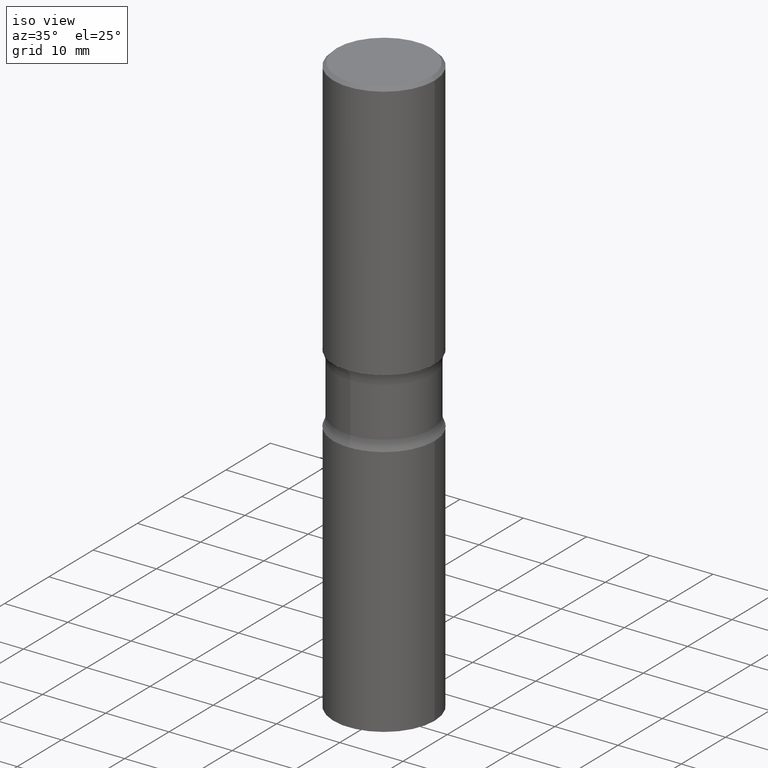
[diagram: clean part render]
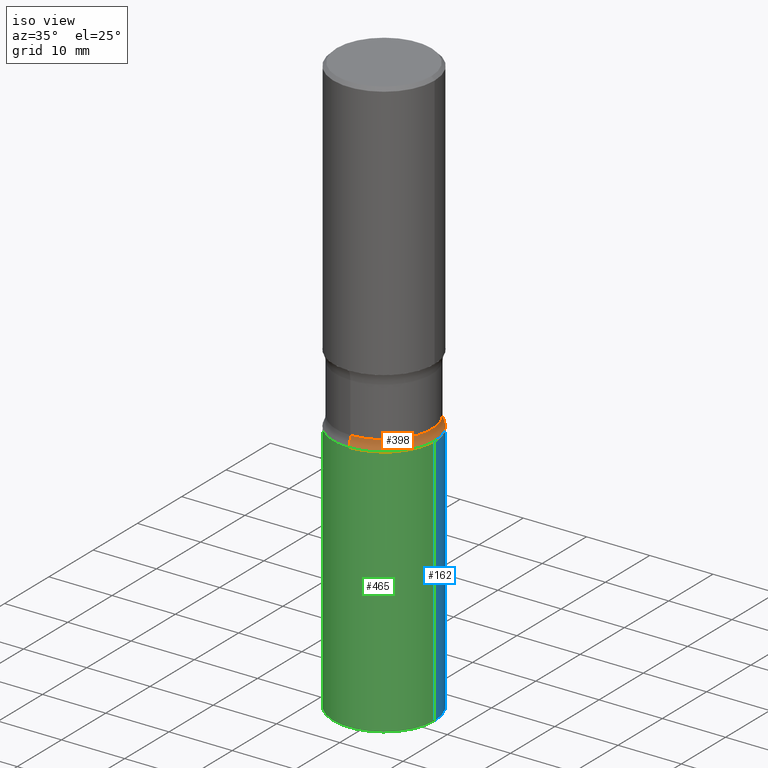
[diagram: same view with three faces highlighted in distinct colors, each labeled with its STEP entity id]
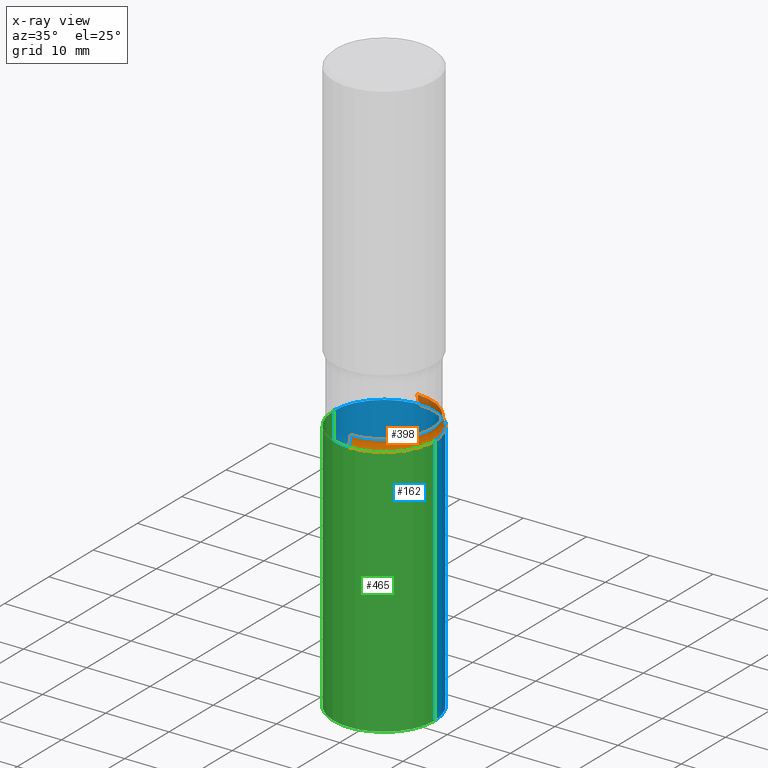
[diagram: x-ray of the same camera — body ghosted, the three highlighted faces saturated]
A machine part, iso view with three faces highlighted in distinct colors.
The next image is the same camera in x-ray (body ghosted, the three faces saturated) — at least one of them is partly hidden behind the body in this view.
Their STEP definitions:

[orange] entity #398 — the highlighted toroidal blend (fillet) surface has major radius 10.7569 mm and minor (blend) radius 3.175 mm.
#1 = CARTESIAN_POINT ( 'NONE',  ( 4.856852841857767702E-29, -6.928388333628615864E-15, -1.985216957964294870 ) ) ;
#26 = DIRECTION ( 'NONE',  ( 1.000000000000000000, -6.860497997771530774E-15, 4.840214122948046087E-29 ) ) ;
#37 = AXIS2_PLACEMENT_3D ( 'NONE', #1, #211, #366 ) ;
#42 = EDGE_CURVE ( 'NONE', #80, #54, #237, .T. ) ;
#45 = EDGE_LOOP ( 'NONE', ( #247, #278, #484, #197 ) ) ;
#52 = CIRCLE ( 'NONE', #155, 0.3149500000000000077 ) ;
#54 = VERTEX_POINT ( 'NONE', #414 ) ;
#80 = VERTEX_POINT ( 'NONE', #291 ) ;
#92 = EDGE_CURVE ( 'NONE', #193, #210, #185, .T. ) ;
#97 = DIRECTION ( 'NONE',  ( 6.860497997771532351E-15, 1.000000000000000000, 0.000000000000000000 ) ) ;
#155 = AXIS2_PLACEMENT_3D ( 'NONE', #282, #493, #402 ) ;
#185 = CIRCLE ( 'NONE', #353, 0.1250000000000000278 ) ;
#193 = VERTEX_POINT ( 'NONE', #479 ) ;
#197 = ORIENTED_EDGE ( 'NONE', *, *, #329, .T. ) ;
#210 = VERTEX_POINT ( 'NONE', #327 ) ;
#211 = DIRECTION ( 'NONE',  ( 2.412125853363540713E-29, -3.539230345046689582E-15, -1.000000000000000000 ) ) ;
#213 = EDGE_CURVE ( 'NONE', #193, #80, #52, .T. ) ;
#224 = DIRECTION ( 'NONE',  ( -6.982962677686265133E-15, -1.000000000000000000, 0.000000000000000000 ) ) ;
#237 = CIRCLE ( 'NONE', #341, 0.1250000000000000278 ) ;
#239 = CIRCLE ( 'NONE', #37, 0.2985000000000000431 ) ;
#247 = ORIENTED_EDGE ( 'NONE', *, *, #42, .F. ) ;
#278 = ORIENTED_EDGE ( 'NONE', *, *, #213, .F. ) ;
#282 = CARTESIAN_POINT ( 'NONE',  ( 5.006363740022211680E-29, -7.147760596879688202E-15, -2.047200000000000131 ) ) ;
#291 = CARTESIAN_POINT ( 'NONE',  ( -2.160713844398093664E-15, -0.3149500000000071132, -2.047199999999998798 ) ) ;
#302 = DIRECTION ( 'NONE',  ( 2.412125853363540713E-29, -3.539230345046689582E-15, -1.000000000000000000 ) ) ;
#315 = CARTESIAN_POINT ( 'NONE',  ( 2.957284694000182846E-15, 0.4234999999999931597, -1.985216957964296203 ) ) ;
#327 = CARTESIAN_POINT ( 'NONE',  ( 2.084414359289399112E-15, 0.2984999999999931042, -1.985216957964295981 ) ) ;
#329 = EDGE_CURVE ( 'NONE', #210, #54, #239, .T. ) ;
#330 = CARTESIAN_POINT ( 'NONE',  ( 4.854786144211432469E-29, -6.931347962287293204E-15, -1.985216957964294870 ) ) ;
#341 = AXIS2_PLACEMENT_3D ( 'NONE', #461, #26, #97 ) ;
#353 = AXIS2_PLACEMENT_3D ( 'NONE', #315, #429, #224 ) ;
#366 = DIRECTION ( 'NONE',  ( 6.982962677686265922E-15, 1.000000000000000000, -3.660767830705879955E-15 ) ) ;
#398 = ADVANCED_FACE ( 'NONE', ( #487 ), #473, .F. ) ;
#402 = DIRECTION ( 'NONE',  ( 6.982962677686265922E-15, 1.000000000000000000, -3.469564049740292770E-15 ) ) ;
#414 = CARTESIAN_POINT ( 'NONE',  ( -2.104286248366424083E-15, -0.2985000000000069820, -1.985216957964293760 ) ) ;
#429 = DIRECTION ( 'NONE',  ( -1.000000000000000000, 6.982962677686265922E-15, -4.883557194083112340E-29 ) ) ;
#442 = AXIS2_PLACEMENT_3D ( 'NONE', #330, #302, #456 ) ;
#456 = DIRECTION ( 'NONE',  ( 6.982962677686265922E-15, 1.000000000000000000, -3.539230345046689582E-15 ) ) ;
#461 = CARTESIAN_POINT ( 'NONE',  ( -2.905420902056195159E-15, -0.4235000000000069820, -1.985216957964293316 ) ) ;
#473 = TOROIDAL_SURFACE ( 'NONE', #442, 0.4235000000000000986, 0.1250000000000000278 ) ;
#479 = CARTESIAN_POINT ( 'NONE',  ( 2.199284095337339175E-15, 0.3149499999999929023, -2.047200000000001019 ) ) ;
#484 = ORIENTED_EDGE ( 'NONE', *, *, #92, .T. ) ;
#487 = FACE_OUTER_BOUND ( 'NONE', #45, .T. ) ;
#493 = DIRECTION ( 'NONE',  ( 2.412125853363540713E-29, -3.539230345046689582E-15, -1.000000000000000000 ) ) ;

[blue] entity #162 — the highlighted cylindrical surface (partial cylindrical patch) has radius 7.9997 mm, axis along (-0, 0, 1).
#5 = EDGE_CURVE ( 'NONE', #200, #50, #331, .T. ) ;
#9 = ORIENTED_EDGE ( 'NONE', *, *, #151, .T. ) ;
#24 = DIRECTION ( 'NONE',  ( -2.445468806185136597E-29, 3.491481338843145583E-15, 1.000000000000000000 ) ) ;
#46 = DIRECTION ( 'NONE',  ( -2.445468806185136877E-29, 3.491481338843145188E-15, 1.000000000000000000 ) ) ;
#50 = VERTEX_POINT ( 'NONE', #139 ) ;
#53 = VECTOR ( 'NONE', #500, 39.37007874015748143 ) ;
#57 = EDGE_LOOP ( 'NONE', ( #9, #156, #399, #244 ) ) ;
#73 = CARTESIAN_POINT ( 'NONE',  ( 0.3149500000000000077, -2.199284095337289871E-15, 1.535751875536930130E-29 ) ) ;
#94 = CARTESIAN_POINT ( 'NONE',  ( 0.000000000000000000, 0.000000000000000000, 0.000000000000000000 ) ) ;
#124 = VERTEX_POINT ( 'NONE', #252 ) ;
#137 = DIRECTION ( 'NONE',  ( -2.445468806185136597E-29, 3.491481338843145583E-15, 1.000000000000000000 ) ) ;
#139 = CARTESIAN_POINT ( 'NONE',  ( -0.3149500000000000077, -7.659098656808344900E-15, -2.047200000000000131 ) ) ;
#151 = EDGE_CURVE ( 'NONE', #486, #200, #385, .T. ) ;
#156 = ORIENTED_EDGE ( 'NONE', *, *, #5, .T. ) ;
#159 = AXIS2_PLACEMENT_3D ( 'NONE', #444, #137, #173 ) ;
#162 = ADVANCED_FACE ( 'NONE', ( #406 ), #289, .T. ) ;
#173 = DIRECTION ( 'NONE',  ( 1.000000000000000000, -6.982962677686263555E-15, 0.000000000000000000 ) ) ;
#184 = DIRECTION ( 'NONE',  ( 1.000000000000000000, -6.982962677686266711E-15, 0.000000000000000000 ) ) ;
#200 = VERTEX_POINT ( 'NONE', #361 ) ;
#225 = CARTESIAN_POINT ( 'NONE',  ( 5.006363740022211680E-29, -7.147760596879688202E-15, -2.047200000000000131 ) ) ;
#233 = CIRCLE ( 'NONE', #322, 0.3149500000000000077 ) ;
#244 = ORIENTED_EDGE ( 'NONE', *, *, #492, .F. ) ;
#252 = CARTESIAN_POINT ( 'NONE',  ( 0.3149500000000000077, -9.347044692216978073E-15, -2.047200000000000131 ) ) ;
#269 = AXIS2_PLACEMENT_3D ( 'NONE', #94, #24, #438 ) ;
#272 = DIRECTION ( 'NONE',  ( -2.445468806185136597E-29, 3.491481338843145583E-15, 1.000000000000000000 ) ) ;
#289 = CYLINDRICAL_SURFACE ( 'NONE', #269, 0.3149500000000000077 ) ;
#322 = AXIS2_PLACEMENT_3D ( 'NONE', #225, #272, #184 ) ;
#331 = LINE ( 'NONE', #359, #374 ) ;
#339 = CARTESIAN_POINT ( 'NONE',  ( 0.3149500000000000077, -1.484542950462716186E-14, -3.621999999999999886 ) ) ;
#359 = CARTESIAN_POINT ( 'NONE',  ( -0.3149500000000000077, 2.237854346276435590E-15, -1.549218606675782676E-29 ) ) ;
#361 = CARTESIAN_POINT ( 'NONE',  ( -0.3149500000000000077, -7.659098656808344900E-15, -3.621999999999999886 ) ) ;
#374 = VECTOR ( 'NONE', #46, 39.37007874015748143 ) ;
#385 = CIRCLE ( 'NONE', #159, 0.3149500000000000077 ) ;
#399 = ORIENTED_EDGE ( 'NONE', *, *, #483, .F. ) ;
#406 = FACE_OUTER_BOUND ( 'NONE', #57, .T. ) ;
#428 = LINE ( 'NONE', #73, #53 ) ;
#438 = DIRECTION ( 'NONE',  ( 1.000000000000000000, -6.982962677686266711E-15, 4.876176775795936353E-29 ) ) ;
#444 = CARTESIAN_POINT ( 'NONE',  ( 8.857488016002564476E-29, -1.264614540928987199E-14, -3.621999999999999886 ) ) ;
#483 = EDGE_CURVE ( 'NONE', #124, #50, #233, .T. ) ;
#486 = VERTEX_POINT ( 'NONE', #339 ) ;
#492 = EDGE_CURVE ( 'NONE', #486, #124, #428, .T. ) ;
#500 = DIRECTION ( 'NONE',  ( -2.445468806185136877E-29, 3.491481338843145188E-15, 1.000000000000000000 ) ) ;

[green] entity #465 — the highlighted cylindrical surface (partial cylindrical patch) has radius 7.9997 mm, axis along (-0, 0, 1).
#2 = ORIENTED_EDGE ( 'NONE', *, *, #5, .F. ) ;
#5 = EDGE_CURVE ( 'NONE', #200, #50, #331, .T. ) ;
#29 = DIRECTION ( 'NONE',  ( 1.000000000000000000, -6.982962677686266711E-15, 0.000000000000000000 ) ) ;
#30 = CARTESIAN_POINT ( 'NONE',  ( 8.857488016002564476E-29, -1.264614540928987199E-14, -3.621999999999999886 ) ) ;
#33 = EDGE_CURVE ( 'NONE', #200, #486, #467, .T. ) ;
#46 = DIRECTION ( 'NONE',  ( -2.445468806185136877E-29, 3.491481338843145188E-15, 1.000000000000000000 ) ) ;
#50 = VERTEX_POINT ( 'NONE', #139 ) ;
#53 = VECTOR ( 'NONE', #500, 39.37007874015748143 ) ;
#73 = CARTESIAN_POINT ( 'NONE',  ( 0.3149500000000000077, -2.199284095337289871E-15, 1.535751875536930130E-29 ) ) ;
#75 = ORIENTED_EDGE ( 'NONE', *, *, #33, .T. ) ;
#96 = FACE_OUTER_BOUND ( 'NONE', #119, .T. ) ;
#99 = DIRECTION ( 'NONE',  ( -2.445468806185136597E-29, 3.491481338843145583E-15, 1.000000000000000000 ) ) ;
#119 = EDGE_LOOP ( 'NONE', ( #2, #75, #122, #238 ) ) ;
#122 = ORIENTED_EDGE ( 'NONE', *, *, #492, .T. ) ;
#124 = VERTEX_POINT ( 'NONE', #252 ) ;
#139 = CARTESIAN_POINT ( 'NONE',  ( -0.3149500000000000077, -7.659098656808344900E-15, -2.047200000000000131 ) ) ;
#144 = DIRECTION ( 'NONE',  ( 1.000000000000000000, -6.982962677686263555E-15, 0.000000000000000000 ) ) ;
#148 = CIRCLE ( 'NONE', #260, 0.3149500000000000077 ) ;
#180 = CYLINDRICAL_SURFACE ( 'NONE', #276, 0.3149500000000000077 ) ;
#183 = DIRECTION ( 'NONE',  ( -2.445468806185136597E-29, 3.491481338843145583E-15, 1.000000000000000000 ) ) ;
#200 = VERTEX_POINT ( 'NONE', #361 ) ;
#226 = CARTESIAN_POINT ( 'NONE',  ( 5.006363740022211680E-29, -7.147760596879688202E-15, -2.047200000000000131 ) ) ;
#238 = ORIENTED_EDGE ( 'NONE', *, *, #246, .F. ) ;
#246 = EDGE_CURVE ( 'NONE', #50, #124, #148, .T. ) ;
#248 = AXIS2_PLACEMENT_3D ( 'NONE', #30, #99, #144 ) ;
#252 = CARTESIAN_POINT ( 'NONE',  ( 0.3149500000000000077, -9.347044692216978073E-15, -2.047200000000000131 ) ) ;
#260 = AXIS2_PLACEMENT_3D ( 'NONE', #226, #183, #29 ) ;
#276 = AXIS2_PLACEMENT_3D ( 'NONE', #335, #496, #468 ) ;
#331 = LINE ( 'NONE', #359, #374 ) ;
#335 = CARTESIAN_POINT ( 'NONE',  ( 0.000000000000000000, 0.000000000000000000, 0.000000000000000000 ) ) ;
#339 = CARTESIAN_POINT ( 'NONE',  ( 0.3149500000000000077, -1.484542950462716186E-14, -3.621999999999999886 ) ) ;
#359 = CARTESIAN_POINT ( 'NONE',  ( -0.3149500000000000077, 2.237854346276435590E-15, -1.549218606675782676E-29 ) ) ;
#361 = CARTESIAN_POINT ( 'NONE',  ( -0.3149500000000000077, -7.659098656808344900E-15, -3.621999999999999886 ) ) ;
#374 = VECTOR ( 'NONE', #46, 39.37007874015748143 ) ;
#428 = LINE ( 'NONE', #73, #53 ) ;
#465 = ADVANCED_FACE ( 'NONE', ( #96 ), #180, .T. ) ;
#467 = CIRCLE ( 'NONE', #248, 0.3149500000000000077 ) ;
#468 = DIRECTION ( 'NONE',  ( 1.000000000000000000, -6.982962677686266711E-15, 4.876176775795936353E-29 ) ) ;
#486 = VERTEX_POINT ( 'NONE', #339 ) ;
#492 = EDGE_CURVE ( 'NONE', #486, #124, #428, .T. ) ;
#496 = DIRECTION ( 'NONE',  ( -2.445468806185136597E-29, 3.491481338843145583E-15, 1.000000000000000000 ) ) ;
#500 = DIRECTION ( 'NONE',  ( -2.445468806185136877E-29, 3.491481338843145188E-15, 1.000000000000000000 ) ) ;